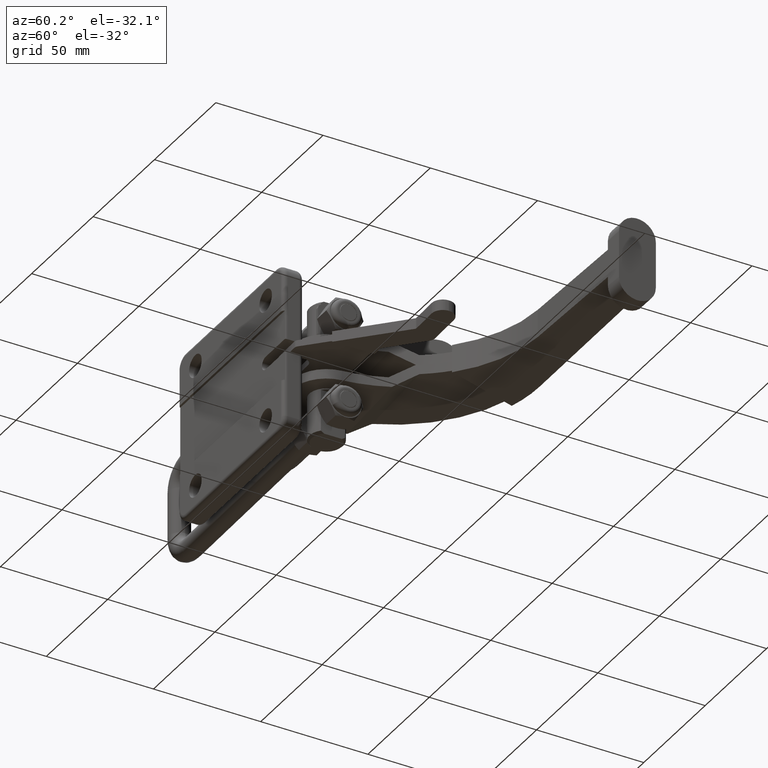
[diagram: clean part render]
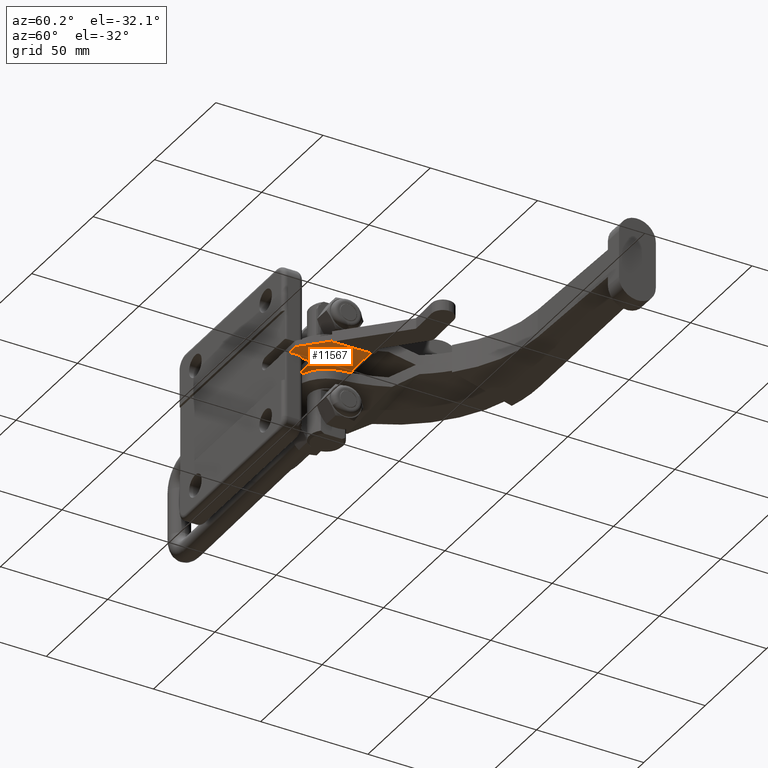
[diagram: same view with one face highlighted and labeled with its STEP entity id]
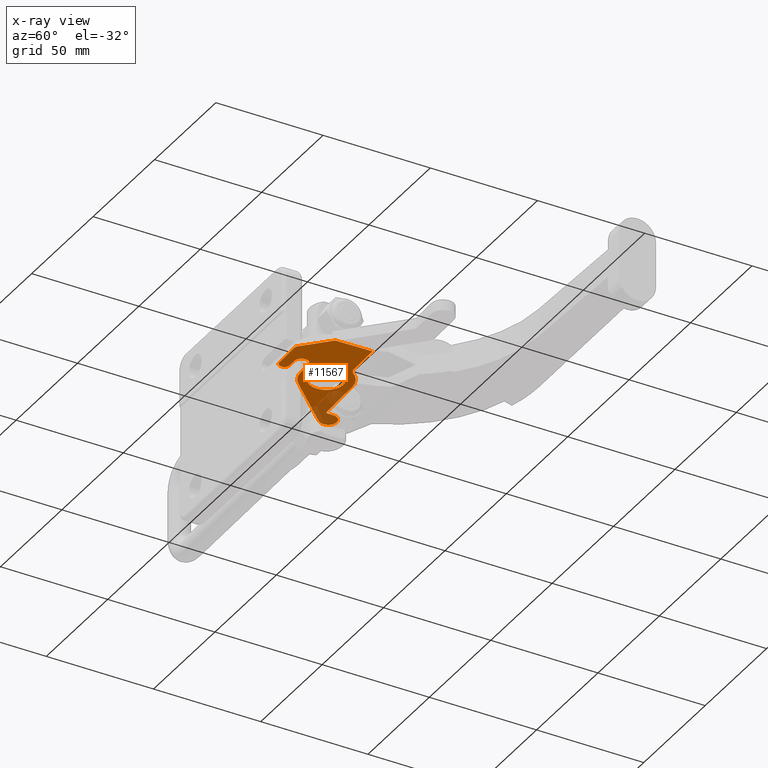
[diagram: x-ray of the same camera — body ghosted, the highlighted face saturated]
A machine part, auxiliary view. The second image highlights one B-rep face of the part: STEP entity #11567.
The next image is the same camera in x-ray: the body ghosted, the highlighted face saturated — about 18% of this face is hidden behind the body in this view.
In plain terms, the highlighted planar face has unit normal (0, 0, 1).
Its self-contained STEP definition (entity closure, byte-faithful):
#191 = VERTEX_POINT ( 'NONE', #3552 ) ;
#197 = EDGE_CURVE ( 'NONE', #7040, #301, #6755, .T. ) ;
#253 = DIRECTION ( 'NONE',  ( 6.494464799301921600E-020, 7.683799999775721400E-020, 1.000000000000000000 ) ) ;
#270 = CARTESIAN_POINT ( 'NONE',  ( 30.11168983674231500, 27.49999999999950300, -1.400000000000019200 ) ) ;
#300 = CARTESIAN_POINT ( 'NONE',  ( 7.874301944111559600, 40.84760576705295400, -1.400000000000020100 ) ) ;
#301 = VERTEX_POINT ( 'NONE', #3742 ) ;
#316 = VERTEX_POINT ( 'NONE', #1878 ) ;
#335 = DIRECTION ( 'NONE',  ( 0.0000000000000000000, -1.000000000000000000, 0.0000000000000000000 ) ) ;
#381 = CARTESIAN_POINT ( 'NONE',  ( 7.874301944111556900, 40.84760576705295400, -1.400000000000020100 ) ) ;
#443 = CARTESIAN_POINT ( 'NONE',  ( 36.04627643664761600, 9.177590718242225200, -1.400000000000020100 ) ) ;
#517 = ORIENTED_EDGE ( 'NONE', *, *, #9401, .F. ) ;
#559 = AXIS2_PLACEMENT_3D ( 'NONE', #7584, #2109, #8511 ) ;
#601 = EDGE_CURVE ( 'NONE', #8589, #11496, #4575, .T. ) ;
#623 = DIRECTION ( 'NONE',  ( 6.494464799301924000E-020, 7.683799999775721400E-020, 1.000000000000000000 ) ) ;
#855 = VECTOR ( 'NONE', #2910, 1000.000000000000100 ) ;
#890 = EDGE_CURVE ( 'NONE', #11226, #11865, #5329, .T. ) ;
#908 = DIRECTION ( 'NONE',  ( 0.7211132770269186300, 0.6928171776850646800, -1.000671342370168900E-019 ) ) ;
#965 = CARTESIAN_POINT ( 'NONE',  ( 44.77004319874787100, 4.202046378786382000, -1.400000000000020100 ) ) ;
#1002 = ORIENTED_EDGE ( 'NONE', *, *, #8828, .F. ) ;
#1084 = VERTEX_POINT ( 'NONE', #965 ) ;
#1141 = CARTESIAN_POINT ( 'NONE',  ( 3.923122766441290200, 43.32715877232323000, -1.400000000000020100 ) ) ;
#1143 = PLANE ( 'NONE',  #9320 ) ;
#1208 = DIRECTION ( 'NONE',  ( 0.0000000000000000000, -1.000000000000000000, 0.0000000000000000000 ) ) ;
#1302 = CARTESIAN_POINT ( 'NONE',  ( 38.01133813370108100, 27.42545615815825500, -1.400000000000019200 ) ) ;
#1723 = EDGE_CURVE ( 'NONE', #316, #2837, #10105, .T. ) ;
#1741 = CARTESIAN_POINT ( 'NONE',  ( 57.90612462849632900, 26.94376748842349300, -1.400000000000020100 ) ) ;
#1855 = VECTOR ( 'NONE', #5067, 999.9999999999998900 ) ;
#1878 = CARTESIAN_POINT ( 'NONE',  ( 1.049900483361621000, 40.54424775829234300, -1.400000000000020100 ) ) ;
#1982 = CARTESIAN_POINT ( 'NONE',  ( 58.02617481085086100, 32.94256636434162300, -1.400000000000020100 ) ) ;
#2057 = DIRECTION ( 'NONE',  ( 0.9997998126530219800, -0.02000836372575456900, 0.0000000000000000000 ) ) ;
#2091 = CARTESIAN_POINT ( 'NONE',  ( 7.922322017053367900, 43.24712531742021300, -1.400000000000020100 ) ) ;
#2105 = VERTEX_POINT ( 'NONE', #5948 ) ;
#2109 = DIRECTION ( 'NONE',  ( 6.494464799301924000E-020, 7.683799999775721400E-020, 1.000000000000000000 ) ) ;
#2116 = VECTOR ( 'NONE', #10795, 1000.000000000000100 ) ;
#2157 = VERTEX_POINT ( 'NONE', #10489 ) ;
#2193 = ORIENTED_EDGE ( 'NONE', *, *, #6971, .F. ) ;
#2315 = VERTEX_POINT ( 'NONE', #6072 ) ;
#2329 = CARTESIAN_POINT ( 'NONE',  ( 29.87559114477840800, 15.70236221069382100, -1.400000000000020100 ) ) ;
#2341 = AXIS2_PLACEMENT_3D ( 'NONE', #270, #6655, #1208 ) ;
#2373 = ORIENTED_EDGE ( 'NONE', *, *, #5602, .F. ) ;
#2436 = CARTESIAN_POINT ( 'NONE',  ( 21.63568410165729000, 19.29041250860834800, -1.400000000000020100 ) ) ;
#2520 = ORIENTED_EDGE ( 'NONE', *, *, #5911, .F. ) ;
#2643 = AXIS2_PLACEMENT_3D ( 'NONE', #2808, #9205, #3702 ) ;
#2651 = ORIENTED_EDGE ( 'NONE', *, *, #1723, .F. ) ;
#2808 = CARTESIAN_POINT ( 'NONE',  ( 30.11168983674231800, 27.49999999999948500, -1.400000000000020100 ) ) ;
#2837 = VERTEX_POINT ( 'NONE', #2436 ) ;
#2893 = VECTOR ( 'NONE', #9204, 1000.000000000000100 ) ;
#2910 = DIRECTION ( 'NONE',  ( -0.9997998126530219800, 0.02000836372575496400, 6.339424424432239500E-020 ) ) ;
#3123 = CIRCLE ( 'NONE', #7892, 2.000000000000003600 ) ;
#3137 = CIRCLE ( 'NONE', #10208, 0.9999999999999983300 ) ;
#3217 = ORIENTED_EDGE ( 'NONE', *, *, #9618, .F. ) ;
#3240 = DIRECTION ( 'NONE',  ( -6.494464799301924000E-020, -7.683799999775721400E-020, -1.000000000000000000 ) ) ;
#3322 = AXIS2_PLACEMENT_3D ( 'NONE', #10190, #4704, #11127 ) ;
#3359 = CIRCLE ( 'NONE', #4784, 2.400000000000001700 ) ;
#3362 = CARTESIAN_POINT ( 'NONE',  ( 31.99905711309372000, 6.858104622777989200, -1.400000000000020100 ) ) ;
#3405 = CARTESIAN_POINT ( 'NONE',  ( 8.874101756764581200, 40.82759740332719600, -1.400000000000020100 ) ) ;
#3414 = ORIENTED_EDGE ( 'NONE', *, *, #9310, .T. ) ;
#3523 = AXIS2_PLACEMENT_3D ( 'NONE', #1141, #7525, #2057 ) ;
#3552 = CARTESIAN_POINT ( 'NONE',  ( 22.21204153978354500, 27.57454384184075400, -1.400000000000019200 ) ) ;
#3620 = CIRCLE ( 'NONE', #3322, 3.199999999999997500 ) ;
#3626 = ORIENTED_EDGE ( 'NONE', *, *, #890, .F. ) ;
#3675 = ORIENTED_EDGE ( 'NONE', *, *, #11817, .F. ) ;
#3682 = CIRCLE ( 'NONE', #2341, 7.900000000000000400 ) ;
#3702 = DIRECTION ( 'NONE',  ( 0.9997998126530219800, -0.02000836372575498200, 0.0000000000000000000 ) ) ;
#3742 = CARTESIAN_POINT ( 'NONE',  ( 57.68303137295416100, 15.79599957734219900, -1.400000000000020100 ) ) ;
#3896 = CARTESIAN_POINT ( 'NONE',  ( 30.11168983674231800, 27.49999999999948500, -1.400000000000020100 ) ) ;
#4002 = ORIENTED_EDGE ( 'NONE', *, *, #601, .F. ) ;
#4027 = CARTESIAN_POINT ( 'NONE',  ( 1.049900483361614100, 40.54424775829233600, -1.400000000000020100 ) ) ;
#4101 = VERTEX_POINT ( 'NONE', #2329 ) ;
#4274 = LINE ( 'NONE', #10541, #1855 ) ;
#4283 = DIRECTION ( 'NONE',  ( 0.9997998126530220900, -0.02000836372575519000, 0.0000000000000000000 ) ) ;
#4328 = DIRECTION ( 'NONE',  ( 0.9997998126530220900, -0.02000836372575285500, 0.0000000000000000000 ) ) ;
#4352 = DIRECTION ( 'NONE',  ( 0.9997998126530220900, -0.02000836372575519000, 0.0000000000000000000 ) ) ;
#4410 = ORIENTED_EDGE ( 'NONE', *, *, #11006, .F. ) ;
#4426 = ORIENTED_EDGE ( 'NONE', *, *, #11609, .F. ) ;
#4455 = CARTESIAN_POINT ( 'NONE',  ( 45.59830448286579200, 4.185470907554178100, -1.400000000000020100 ) ) ;
#4575 = CIRCLE ( 'NONE', #5026, 1.999999999999996900 ) ;
#4704 = DIRECTION ( 'NONE',  ( -6.494464799301924000E-020, -7.683799999775721400E-020, -1.000000000000000000 ) ) ;
#4768 = VERTEX_POINT ( 'NONE', #2091 ) ;
#4784 = AXIS2_PLACEMENT_3D ( 'NONE', #3362, #9788, #4283 ) ;
#4876 = VERTEX_POINT ( 'NONE', #443 ) ;
#4963 = CIRCLE ( 'NONE', #559, 11.80000000000000200 ) ;
#4966 = CARTESIAN_POINT ( 'NONE',  ( 44.81005992619937900, 6.201646004092426200, -1.400000000000020100 ) ) ;
#4980 = VECTOR ( 'NONE', #6769, 999.9999999999998900 ) ;
#4999 = ORIENTED_EDGE ( 'NONE', *, *, #8922, .F. ) ;
#5026 = AXIS2_PLACEMENT_3D ( 'NONE', #9666, #3240, #8712 ) ;
#5067 = DIRECTION ( 'NONE',  ( 0.9997998126530220900, -0.02000836372575508600, -6.339424424432238300E-020 ) ) ;
#5134 = ORIENTED_EDGE ( 'NONE', *, *, #10869, .F. ) ;
#5192 = EDGE_CURVE ( 'NONE', #6917, #8176, #7734, .T. ) ;
#5285 = CARTESIAN_POINT ( 'NONE',  ( 31.99905711309372000, 6.858104622777989200, -1.400000000000020100 ) ) ;
#5288 = CARTESIAN_POINT ( 'NONE',  ( 31.95103704015190300, 4.458585072410738100, -1.400000000000020100 ) ) ;
#5322 = ORIENTED_EDGE ( 'NONE', *, *, #9913, .F. ) ;
#5329 = CIRCLE ( 'NONE', #10322, 2.400000000000001700 ) ;
#5367 = FACE_BOUND ( 'NONE', #8243, .T. ) ;
#5402 = DIRECTION ( 'NONE',  ( -0.02000836372575508200, -0.9997998126530219800, 7.812205414147597700E-020 ) ) ;
#5507 = CARTESIAN_POINT ( 'NONE',  ( 30.34978936507880200, 39.39761777057044900, -1.400000000000020100 ) ) ;
#5544 = EDGE_CURVE ( 'NONE', #4768, #2105, #7005, .T. ) ;
#5602 = EDGE_CURVE ( 'NONE', #4876, #2157, #8585, .T. ) ;
#5654 = CARTESIAN_POINT ( 'NONE',  ( 63.43711882374079600, 32.83428055098233500, -1.400000000000020100 ) ) ;
#5806 = DIRECTION ( 'NONE',  ( -6.494464799301924000E-020, -7.683799999775721400E-020, -1.000000000000000000 ) ) ;
#5853 = CARTESIAN_POINT ( 'NONE',  ( 36.17432996449245100, 15.57630951922156400, -1.400000000000020100 ) ) ;
#5881 = DIRECTION ( 'NONE',  ( 0.9997998126530220900, -0.02000836372575582100, 0.0000000000000000000 ) ) ;
#5911 = EDGE_CURVE ( 'NONE', #7040, #8589, #5997, .T. ) ;
#5948 = CARTESIAN_POINT ( 'NONE',  ( -0.07607648417079504500, 43.40719222722624700, -1.400000000000020100 ) ) ;
#5997 = LINE ( 'NONE', #5654, #855 ) ;
#6053 = CARTESIAN_POINT ( 'NONE',  ( 29.59953756272646800, 6.906124695719801900, -1.400000000000020100 ) ) ;
#6072 = CARTESIAN_POINT ( 'NONE',  ( 46.19569428156951600, 4.759419450038590700, -1.400000000000020100 ) ) ;
#6087 = CARTESIAN_POINT ( 'NONE',  ( 3.923122766441290200, 43.32715877232323000, -1.400000000000020100 ) ) ;
#6364 = VERTEX_POINT ( 'NONE', #1302 ) ;
#6644 = DIRECTION ( 'NONE',  ( 0.9997998126530219800, -0.02000836372575508200, -6.339424424432238300E-020 ) ) ;
#6655 = DIRECTION ( 'NONE',  ( -6.494464799301924000E-020, -7.683799999775721400E-020, -1.000000000000000000 ) ) ;
#6692 = EDGE_CURVE ( 'NONE', #6364, #191, #3682, .T. ) ;
#6755 = LINE ( 'NONE', #1741, #9513 ) ;
#6769 = DIRECTION ( 'NONE',  ( 0.02000836372575508600, 0.9997998126530220900, -7.812205414147597700E-020 ) ) ;
#6815 = CIRCLE ( 'NONE', #3523, 3.999999999999997300 ) ;
#6917 = VERTEX_POINT ( 'NONE', #9193 ) ;
#6971 = EDGE_CURVE ( 'NONE', #7192, #4876, #3620, .T. ) ;
#7005 = CIRCLE ( 'NONE', #11679, 3.999999999999997300 ) ;
#7011 = DIRECTION ( 'NONE',  ( 0.9997998126530219800, -0.02000836372575456900, 0.0000000000000000000 ) ) ;
#7040 = VERTEX_POINT ( 'NONE', #1982 ) ;
#7093 = CARTESIAN_POINT ( 'NONE',  ( 29.87559114477840800, 15.70236221069382100, -1.400000000000020100 ) ) ;
#7192 = VERTEX_POINT ( 'NONE', #5853 ) ;
#7525 = DIRECTION ( 'NONE',  ( 6.494464799301924000E-020, 7.683799999775721400E-020, 1.000000000000000000 ) ) ;
#7584 = CARTESIAN_POINT ( 'NONE',  ( 30.11168983674231800, 27.49999999999948500, -1.400000000000020100 ) ) ;
#7658 = VECTOR ( 'NONE', #7742, 1000.000000000000000 ) ;
#7734 = LINE ( 'NONE', #5507, #2893 ) ;
#7742 = DIRECTION ( 'NONE',  ( 0.6957277535077228700, -0.7183055707699176300, 1.000936939467478900E-020 ) ) ;
#7892 = AXIS2_PLACEMENT_3D ( 'NONE', #4966, #11394, #5881 ) ;
#7965 = CARTESIAN_POINT ( 'NONE',  ( 36.04627643664761600, 9.177590718242225200, -1.400000000000020100 ) ) ;
#8176 = VERTEX_POINT ( 'NONE', #8353 ) ;
#8243 = EDGE_LOOP ( 'NONE', ( #4426, #8761 ) ) ;
#8353 = CARTESIAN_POINT ( 'NONE',  ( 8.854093393038823500, 39.82779759067418000, -1.400000000000020100 ) ) ;
#8378 = CARTESIAN_POINT ( 'NONE',  ( 39.97828721243511300, 34.15283820831119500, -1.400000000000020100 ) ) ;
#8511 = DIRECTION ( 'NONE',  ( 0.9997998126530220900, -0.02000836372575511000, 0.0000000000000000000 ) ) ;
#8524 = EDGE_CURVE ( 'NONE', #2315, #301, #11614, .T. ) ;
#8585 = LINE ( 'NONE', #7965, #9179 ) ;
#8589 = VERTEX_POINT ( 'NONE', #10149 ) ;
#8707 = VERTEX_POINT ( 'NONE', #300 ) ;
#8712 = DIRECTION ( 'NONE',  ( 0.9997998126530219800, -0.02000836372575632100, 0.0000000000000000000 ) ) ;
#8761 = ORIENTED_EDGE ( 'NONE', *, *, #6692, .F. ) ;
#8828 = EDGE_CURVE ( 'NONE', #11865, #1084, #4274, .T. ) ;
#8922 = EDGE_CURVE ( 'NONE', #8176, #8707, #3137, .T. ) ;
#9172 = VECTOR ( 'NONE', #908, 1000.000000000000100 ) ;
#9179 = VECTOR ( 'NONE', #9831, 1000.000000000000100 ) ;
#9193 = CARTESIAN_POINT ( 'NONE',  ( 30.34978936507880600, 39.39761777057044900, -1.400000000000020100 ) ) ;
#9204 = DIRECTION ( 'NONE',  ( -0.9997998126530219800, 0.02000836372575508200, 6.339424424432238300E-020 ) ) ;
#9205 = DIRECTION ( 'NONE',  ( 6.494464799301924000E-020, 7.683799999775721400E-020, 1.000000000000000000 ) ) ;
#9310 = EDGE_CURVE ( 'NONE', #2315, #1084, #3123, .T. ) ;
#9320 = AXIS2_PLACEMENT_3D ( 'NONE', #3896, #253, #6644 ) ;
#9401 = EDGE_CURVE ( 'NONE', #8707, #4768, #9857, .T. ) ;
#9427 = LINE ( 'NONE', #7093, #2116 ) ;
#9432 = ORIENTED_EDGE ( 'NONE', *, *, #5192, .F. ) ;
#9513 = VECTOR ( 'NONE', #5402, 1000.000000000000100 ) ;
#9618 = EDGE_CURVE ( 'NONE', #4101, #7192, #9427, .T. ) ;
#9666 = CARTESIAN_POINT ( 'NONE',  ( 41.63653887221541100, 35.27096227693500900, -1.400000000000020100 ) ) ;
#9788 = DIRECTION ( 'NONE',  ( 6.494464799301924000E-020, 7.683799999775721400E-020, 1.000000000000000000 ) ) ;
#9795 = ORIENTED_EDGE ( 'NONE', *, *, #8524, .F. ) ;
#9826 = DIRECTION ( 'NONE',  ( -6.494464799301924000E-020, -7.683799999775721400E-020, -1.000000000000000000 ) ) ;
#9831 = DIRECTION ( 'NONE',  ( -0.9997998126530219800, 0.02000836372575508200, 6.339424424432238300E-020 ) ) ;
#9857 = LINE ( 'NONE', #381, #4980 ) ;
#9913 = EDGE_CURVE ( 'NONE', #2105, #316, #6815, .T. ) ;
#9918 = AXIS2_PLACEMENT_3D ( 'NONE', #11323, #5806, #335 ) ;
#9962 = CIRCLE ( 'NONE', #9918, 7.900000000000000400 ) ;
#10105 = LINE ( 'NONE', #4027, #7658 ) ;
#10149 = CARTESIAN_POINT ( 'NONE',  ( 41.59652214476390200, 33.27136265162895500, -1.400000000000020100 ) ) ;
#10190 = CARTESIAN_POINT ( 'NONE',  ( 36.11030320057003700, 12.37695011873189300, -1.400000000000020100 ) ) ;
#10208 = AXIS2_PLACEMENT_3D ( 'NONE', #3405, #9826, #4328 ) ;
#10252 = FACE_OUTER_BOUND ( 'NONE', #11148, .T. ) ;
#10322 = AXIS2_PLACEMENT_3D ( 'NONE', #5285, #11698, #4352 ) ;
#10489 = CARTESIAN_POINT ( 'NONE',  ( 32.04707718603553000, 9.257624173145243800, -1.400000000000020100 ) ) ;
#10541 = CARTESIAN_POINT ( 'NONE',  ( 31.95103704015190300, 4.458585072410738100, -1.400000000000020100 ) ) ;
#10718 = ORIENTED_EDGE ( 'NONE', *, *, #197, .T. ) ;
#10795 = DIRECTION ( 'NONE',  ( 0.9997998126530219800, -0.02000836372575508200, -6.339424424432238300E-020 ) ) ;
#10869 = EDGE_CURVE ( 'NONE', #11496, #6917, #11576, .T. ) ;
#10972 = ORIENTED_EDGE ( 'NONE', *, *, #5544, .F. ) ;
#11006 = EDGE_CURVE ( 'NONE', #2837, #4101, #4963, .T. ) ;
#11127 = DIRECTION ( 'NONE',  ( 0.9997998126530219800, -0.02000836372575522100, 0.0000000000000000000 ) ) ;
#11148 = EDGE_LOOP ( 'NONE', ( #2520, #10718, #9795, #3414, #1002, #3626, #3675, #2373, #2193, #3217, #4410, #2651, #5322, #10972, #517, #4999, #9432, #5134, #4002 ) ) ;
#11226 = VERTEX_POINT ( 'NONE', #6053 ) ;
#11323 = CARTESIAN_POINT ( 'NONE',  ( 30.11168983674231500, 27.49999999999950300, -1.400000000000019200 ) ) ;
#11394 = DIRECTION ( 'NONE',  ( -6.494464799301924000E-020, -7.683799999775721400E-020, -1.000000000000000000 ) ) ;
#11496 = VERTEX_POINT ( 'NONE', #8378 ) ;
#11567 = ADVANCED_FACE ( 'NONE', ( #5367, #10252 ), #1143, .F. ) ;
#11576 = CIRCLE ( 'NONE', #2643, 11.89999999999999900 ) ;
#11609 = EDGE_CURVE ( 'NONE', #191, #6364, #9962, .T. ) ;
#11614 = LINE ( 'NONE', #4455, #9172 ) ;
#11679 = AXIS2_PLACEMENT_3D ( 'NONE', #6087, #623, #7011 ) ;
#11698 = DIRECTION ( 'NONE',  ( 6.494464799301924000E-020, 7.683799999775721400E-020, 1.000000000000000000 ) ) ;
#11817 = EDGE_CURVE ( 'NONE', #2157, #11226, #3359, .T. ) ;
#11865 = VERTEX_POINT ( 'NONE', #5288 ) ;